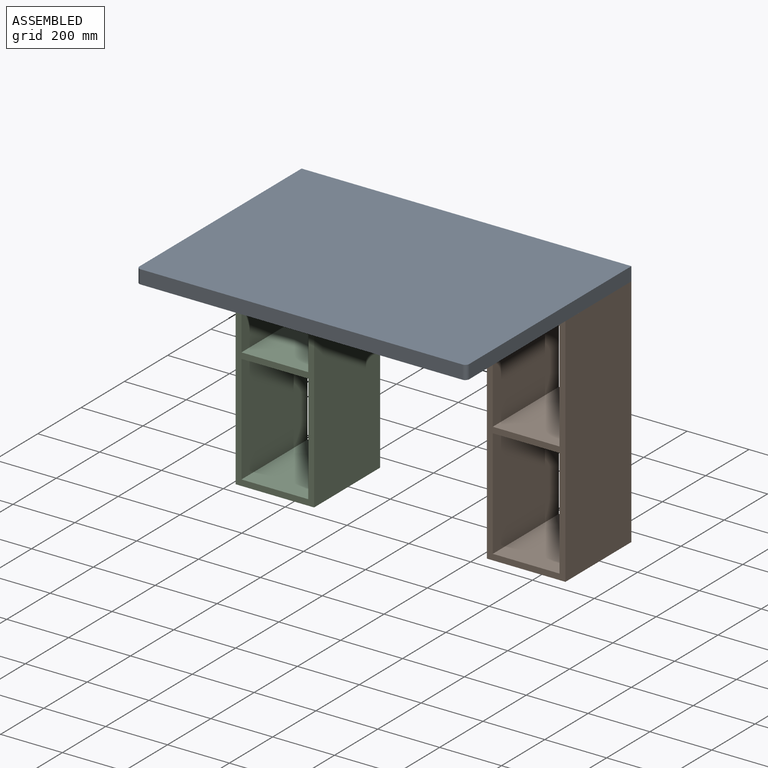
[diagram: assembled view]
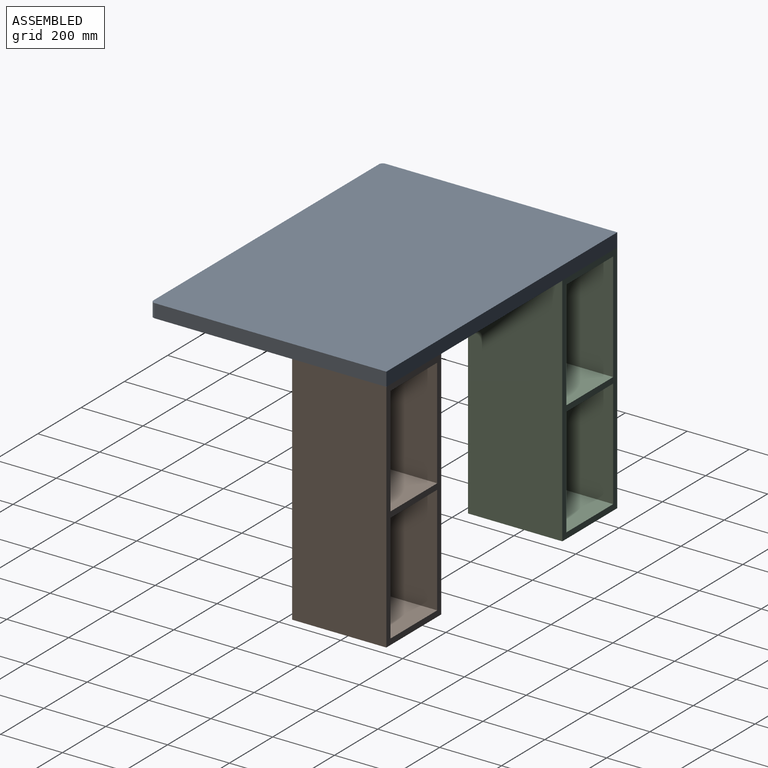
[diagram: assembled view, second angle]
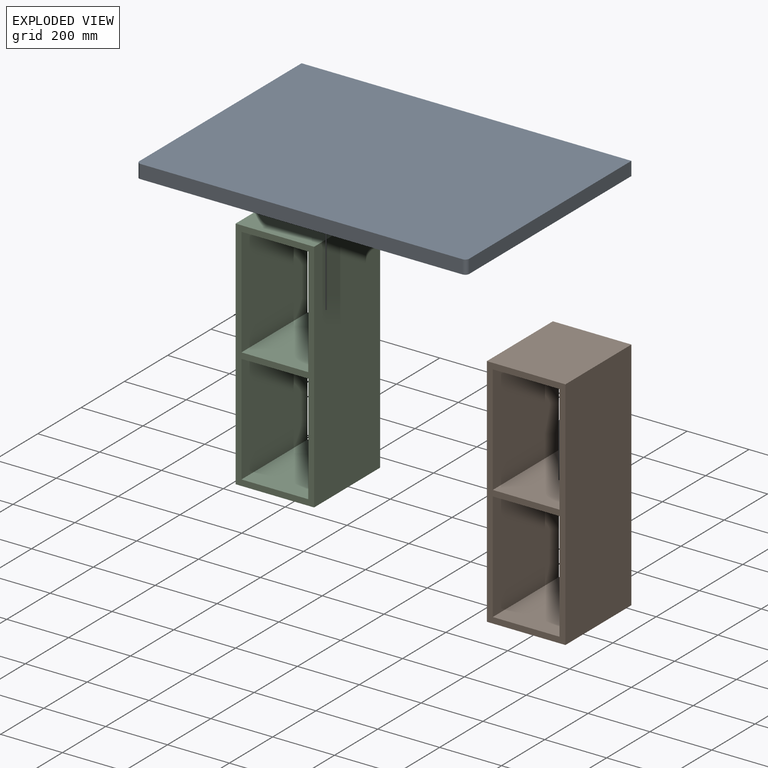
[diagram: exploded view]
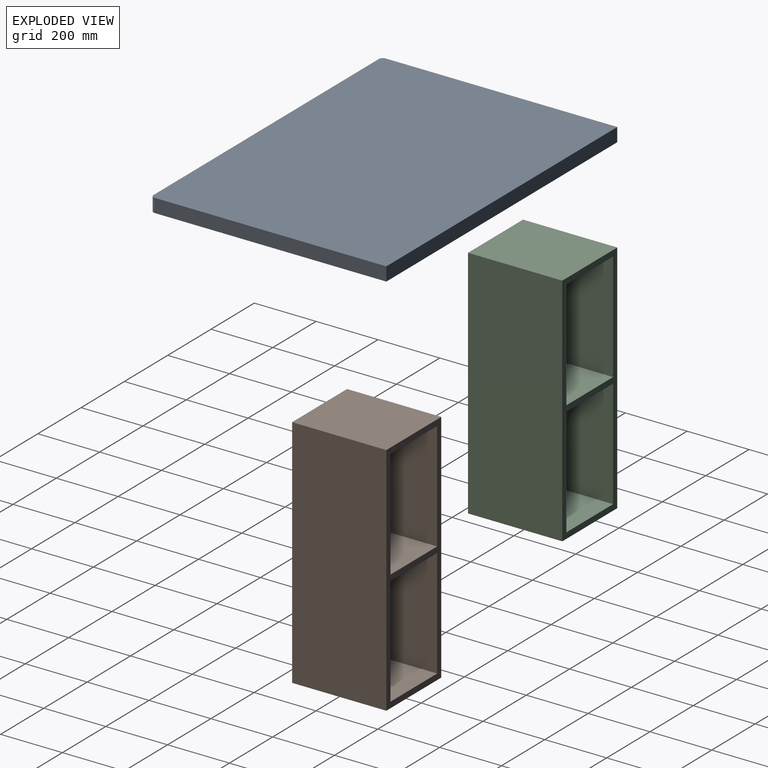
[diagram: exploded view, second angle]
ASSEMBLY  parts=3 mates=2
PART A: 8 faces, bbox 1066.8x762x44.5 mm
  f0: plane 1066.8x44.45mm, normal (0,1,0), area 47419.3mm2, adj f1,f3,f4,f5
  f1: plane 749.3x44.45mm, normal (-1,0,0), area 33306.4mm2, adj f0,f4,f5,f6
  f2: plane 1041.4x44.45mm, normal (0,-1,0), area 46290.2mm2, adj f4,f5,f6,f7
  f3: plane 749.3x44.45mm, normal (1,0,0), area 33306.4mm2, adj f0,f4,f5,f7
  f4: plane 1066.8x762mm, normal (0,0,1), area 812832.4mm2, adj f0,f1,f2,f3,f6,f7
  f5: plane 1066.8x762mm, normal (0,0,-1), area 812832.4mm2, adj f0,f1,f2,f3,f6,f7
  f6: cylinder r=12.7mm len=44.45mm, axis (0,0,-1), area 886.7mm2, adj f1,f2,f4,f5
  f7: cylinder r=12.7mm len=44.45mm, axis (0,0,1), area 886.7mm2, adj f2,f3,f4,f5
PART B: 14 faces, bbox 254x304.8x762 mm
  f0: plane 762x254mm, normal (0,1,0), area 41370.9mm2, adj f2,f3,f4,f5,f6,f7,f8,f9
  f1: plane 762x254mm, normal (0,-1,0), area 41370.9mm2, adj f2,f3,f4,f5,f6,f7,f8,f9
  f2: plane 762x304.8mm, normal (-1,0,0), area 232257.6mm2, adj f0,f1,f4,f5
  f3: plane 762x304.8mm, normal (1,0,0), area 232257.6mm2, adj f0,f1,f4,f5
  f4: plane 304.8x254mm, normal (0,0,1), area 77419.2mm2, adj f0,f1,f2,f3
  f5: plane 304.8x254mm, normal (0,0,-1), area 77419.2mm2, adj f0,f1,f2,f3
  f6: plane 304.8x215.9mm, normal (0,0,-1), area 65806.3mm2, adj f0,f1,f7,f9
  f7: plane 352.43x304.8mm, normal (-1,0,0), area 107419.1mm2, adj f0,f1,f6,f8
  f8: plane 304.8x215.9mm, normal (0,0,1), area 65806.3mm2, adj f0,f1,f7,f9
  f9: plane 352.43x304.8mm, normal (1,0,0), area 107419.1mm2, adj f0,f1,f6,f8
  f10: plane 304.8x215.9mm, normal (0,0,1), area 65806.3mm2, adj f0,f1,f11,f13
  f11: plane 352.43x304.8mm, normal (-1,0,0), area 107419.1mm2, adj f0,f1,f10,f12
  f12: plane 304.8x215.9mm, normal (0,0,-1), area 65806.3mm2, adj f0,f1,f11,f13
  f13: plane 352.43x304.8mm, normal (1,0,0), area 107419.1mm2, adj f0,f1,f10,f12
PART C: same geometry as B
PLACE A t=(-533.4,380.97,-44.45)mm
PLACE B t=(279.4,380.97,-806.45)mm
PLACE C t=(-533.4,380.97,-806.45)mm
MATE fastened B.f4 <-> A.f5  axis (0,0,1) through (533.4,380.97,-44.45)mm
MATE fastened C.f4 <-> A.f5  axis (0,0,1) through (-533.4,380.97,-44.45)mm
